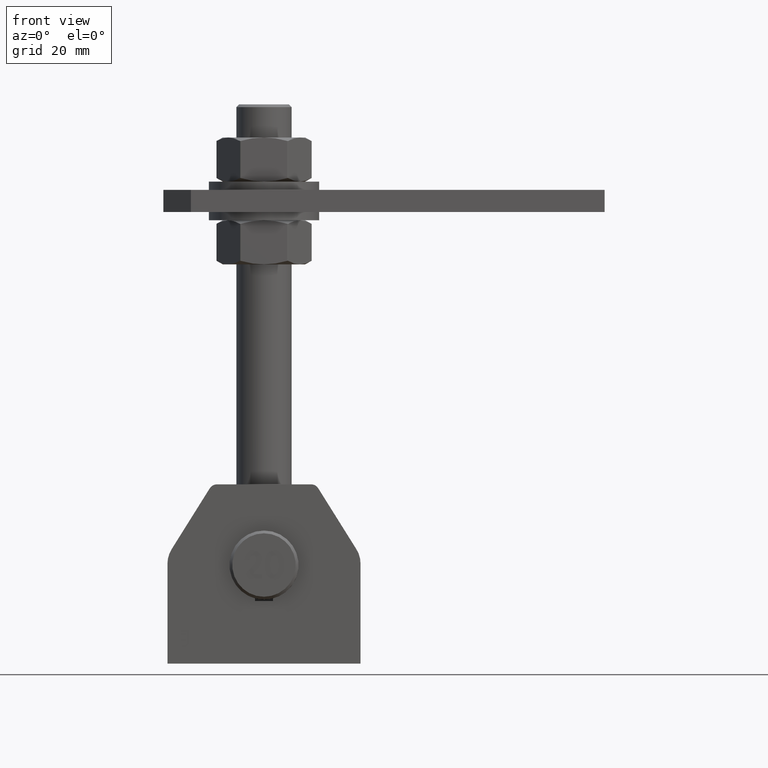
[diagram: clean part render]
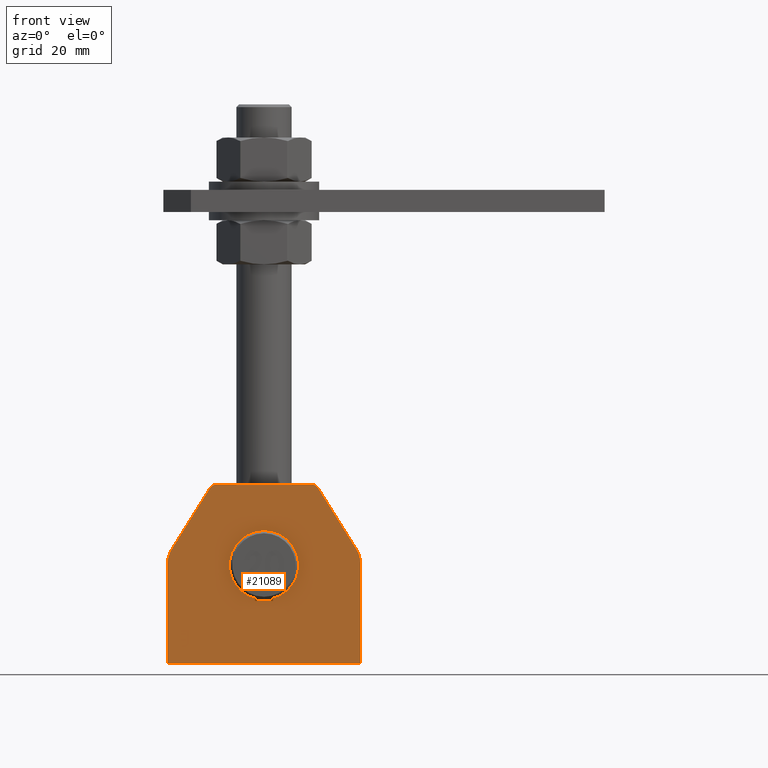
[diagram: same view with one face highlighted and labeled with its STEP entity id]
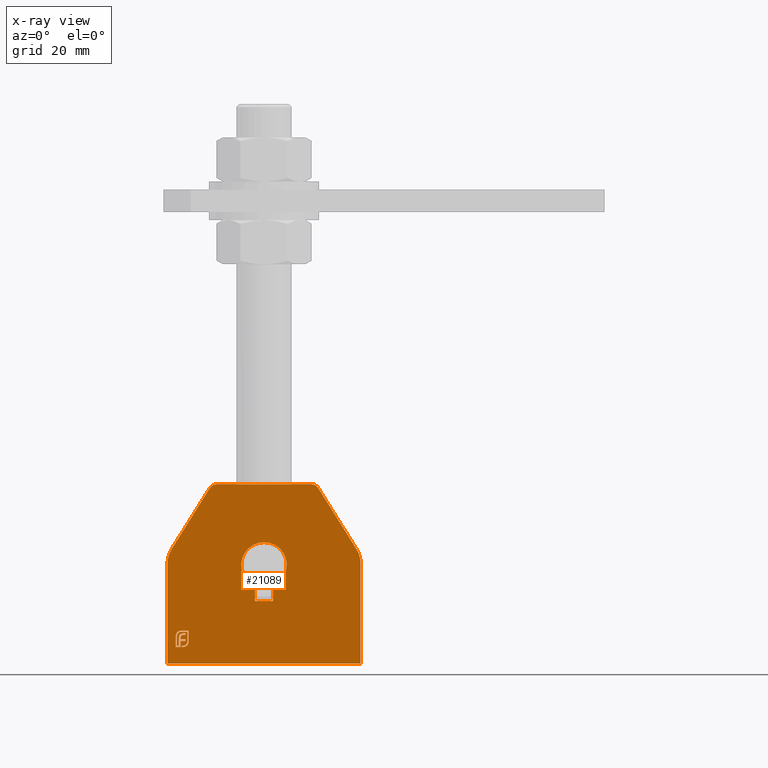
[diagram: x-ray of the same camera — body ghosted, the highlighted face saturated]
A machine part, front view. The second image highlights one B-rep face of the part: STEP entity #21089.
The next image is the same camera in x-ray: the body ghosted, the highlighted face saturated — about 0% of this face is hidden behind the body in this view.
In plain terms, the highlighted planar face has unit normal (0, 1, 0).
Its self-contained STEP definition (entity closure, byte-faithful):
#52 = ORIENTED_EDGE ( 'NONE', *, *, #24335, .T. ) ;
#70 = LINE ( 'NONE', #16175, #7531 ) ;
#88 = LINE ( 'NONE', #8065, #13505 ) ;
#216 = VERTEX_POINT ( 'NONE', #23511 ) ;
#238 = VERTEX_POINT ( 'NONE', #22995 ) ;
#254 = CARTESIAN_POINT ( 'NONE',  ( -30.33311196767898466, -4.000000000000003553, -21.84837309934362892 ) ) ;
#263 = VERTEX_POINT ( 'NONE', #5601 ) ;
#270 = ORIENTED_EDGE ( 'NONE', *, *, #16816, .T. ) ;
#313 = VECTOR ( 'NONE', #3710, 1000.000000000000000 ) ;
#334 = ORIENTED_EDGE ( 'NONE', *, *, #13826, .T. ) ;
#339 = CARTESIAN_POINT ( 'NONE',  ( -27.79400140138258024, -4.000000000000003553, -24.51862698483808245 ) ) ;
#346 = EDGE_CURVE ( 'NONE', #5679, #2559, #24273, .T. ) ;
#362 = B_SPLINE_CURVE_WITH_KNOTS ( 'NONE', 3,
 ( #16059, #8355, #6617, #1030, #2875, #8596, #23619, #18191, #10351, #4644, #6697 ),
 .UNSPECIFIED., .F., .F.,
 ( 4, 1, 1, 1, 1, 1, 1, 1, 4 ),
 ( 0.000000000000000000, 0.1304902425292584489, 0.2570045222119934358, 0.3808172307134164991, 0.5023049142174740300, 0.6242765738051623270, 0.7466372728324792707, 0.8718179433199511053, 1.000000000000000000 ),
 .UNSPECIFIED. ) ;
#394 = CIRCLE ( 'NONE', #16932, 2.999999999999992450 ) ;
#425 = CARTESIAN_POINT ( 'NONE',  ( -27.90502633645406405, -4.000000000000003553, -25.06728899391275078 ) ) ;
#455 = CARTESIAN_POINT ( 'NONE',  ( -29.95902029391182708, -4.000000000000003553, -20.49807557732681218 ) ) ;
#463 = CARTESIAN_POINT ( 'NONE',  ( -29.96636808957313036, -4.000000000000003553, -22.39993002099371111 ) ) ;
#511 = CARTESIAN_POINT ( 'NONE',  ( -28.21837157135702157, -4.000000000000003553, -25.53532190455663553 ) ) ;
#563 = ORIENTED_EDGE ( 'NONE', *, *, #346, .T. ) ;
#633 = VECTOR ( 'NONE', #3526, 1000.000000000000000 ) ;
#634 = DIRECTION ( 'NONE',  ( 0.000000000000000000, 0.000000000000000000, -1.000000000000000000 ) ) ;
#672 = ORIENTED_EDGE ( 'NONE', *, *, #2492, .T. ) ;
#679 = EDGE_CURVE ( 'NONE', #20190, #16444, #1293, .T. ) ;
#711 = CARTESIAN_POINT ( 'NONE',  ( -28.65904292549646470, -4.000000000000003553, -26.37719695710651280 ) ) ;
#787 = ORIENTED_EDGE ( 'NONE', *, *, #15537, .T. ) ;
#816 = VERTEX_POINT ( 'NONE', #13308 ) ;
#827 = CARTESIAN_POINT ( 'NONE',  ( -31.02814965754892640, -4.000000000000003553, -21.39517115920785884 ) ) ;
#838 = CARTESIAN_POINT ( 'NONE',  ( 35.00000000000000000, -4.000000000000003553, -32.50000000000000711 ) ) ;
#858 = CARTESIAN_POINT ( 'NONE',  ( -30.22354093771868833, -4.000000000000003553, -26.50000000000001066 ) ) ;
#868 = CARTESIAN_POINT ( 'NONE',  ( -31.52497368408887368, -4.000000000000003553, -22.37512024014385048 ) ) ;
#924 = CARTESIAN_POINT ( 'NONE',  ( -29.96636808957313036, -4.000000000000003553, -22.39993002099371111 ) ) ;
#987 = CARTESIAN_POINT ( 'NONE',  ( -30.27218139546738129, -4.000000000000003553, -20.99682759641462937 ) ) ;
#1030 = CARTESIAN_POINT ( 'NONE',  ( -29.04975934255973158, -4.000000000000003553, -26.00297381078895143 ) ) ;
#1041 = VERTEX_POINT ( 'NONE', #19697 ) ;
#1068 = VECTOR ( 'NONE', #7013, 1000.000000000000000 ) ;
#1104 = CARTESIAN_POINT ( 'NONE',  ( -29.90296037873983082, -4.000000000000003553, -22.33522812082360431 ) ) ;
#1159 = CARTESIAN_POINT ( 'NONE',  ( -30.88484254723583078, -4.000000000000003553, -26.02851644506649009 ) ) ;
#1181 = DIRECTION ( 'NONE',  ( -1.000000000000000000, 0.000000000000000000, 0.000000000000000000 ) ) ;
#1203 = B_SPLINE_CURVE_WITH_KNOTS ( 'NONE', 3,
 ( #14754, #20696, #5411, #7160, #17040, #16953, #9300 ),
 .UNSPECIFIED., .F., .F.,
 ( 4, 1, 1, 1, 4 ),
 ( 0.000000000000000000, 0.2502307454963358380, 0.4981201228331084141, 0.7465600120008935026, 1.000000000000000000 ),
 .UNSPECIFIED. ) ;
#1210 = LINE ( 'NONE', #23001, #9833 ) ;
#1213 = CARTESIAN_POINT ( 'NONE',  ( -30.19697888547898756, -4.000000000000003553, -22.82052140751466851 ) ) ;
#1249 = VECTOR ( 'NONE', #23331, 1000.000000000000000 ) ;
#1269 = DIRECTION ( 'NONE',  ( 0.000000000000000000, 0.000000000000000000, 1.000000000000000000 ) ) ;
#1293 = LINE ( 'NONE', #4694, #18369 ) ;
#1308 = EDGE_CURVE ( 'NONE', #14521, #216, #88, .T. ) ;
#1326 = CARTESIAN_POINT ( 'NONE',  ( -27.63154022592958015, -4.000000000000003553, -25.54083546553009754 ) ) ;
#1347 = DIRECTION ( 'NONE',  ( 0.000000000000000000, 1.000000000000000000, 0.000000000000000000 ) ) ;
#1515 = VECTOR ( 'NONE', #24128, 1000.000000000000000 ) ;
#1516 = CARTESIAN_POINT ( 'NONE',  ( -31.76582520955162181, -4.000000000000003553, -21.58284559660583213 ) ) ;
#1519 = CARTESIAN_POINT ( 'NONE',  ( -32.00048285514345991, -4.000000000000003553, -22.53219034289714173 ) ) ;
#1553 = DIRECTION ( 'NONE',  ( 0.5308190974567825737, -0.000000000000000000, -0.8474851537196191886 ) ) ;
#1578 = CARTESIAN_POINT ( 'NONE',  ( -28.79317004898530996, -4.000000000000003553, -26.41672498250525791 ) ) ;
#1666 = CARTESIAN_POINT ( 'NONE',  ( -27.32917860523513554, -4.000000000000003553, -24.73149125911965740 ) ) ;
#1765 = DIRECTION ( 'NONE',  ( -1.000000000000000000, -1.362043872071969944E-14, 0.000000000000000000 ) ) ;
#1915 = ORIENTED_EDGE ( 'NONE', *, *, #23016, .F. ) ;
#1944 = VECTOR ( 'NONE', #8546, 1000.000000000000000 ) ;
#1952 = EDGE_LOOP ( 'NONE', ( #4614, #7808, #2860, #16234, #52, #13014, #21096, #2677, #270, #14843, #14294, #6230, #2132, #7278, #10937, #20592, #9028, #787, #18217, #2302, #22335, #9200, #14216, #17008, #15632, #24127, #11589, #16574, #24719, #11011, #12498, #334, #2593, #23206, #563, #23823, #23766, #13838, #11817, #672, #23034, #22068 ) ) ;
#1967 = DIRECTION ( 'NONE',  ( 0.000000000000000000, -0.000000000000000000, 1.000000000000000000 ) ) ;
#1976 = CARTESIAN_POINT ( 'NONE',  ( -31.06608817354793928, -4.000000000000003553, -21.43247025892233282 ) ) ;
#2132 = ORIENTED_EDGE ( 'NONE', *, *, #15711, .T. ) ;
#2141 = CARTESIAN_POINT ( 'NONE',  ( -27.32116165150455345, -4.000000000000003553, -24.46588523442968111 ) ) ;
#2142 = VECTOR ( 'NONE', #15439, 1000.000000000000000 ) ;
#2262 = CARTESIAN_POINT ( 'NONE',  ( -29.53652827490615351, -4.000000000000003553, -21.54789972271763432 ) ) ;
#2273 = CARTESIAN_POINT ( 'NONE',  ( -27.32116165150454989, -4.000000000000003553, -22.48198040587824664 ) ) ;
#2302 = ORIENTED_EDGE ( 'NONE', *, *, #3898, .T. ) ;
#2343 = EDGE_CURVE ( 'NONE', #9743, #13886, #10161, .T. ) ;
#2448 = DIRECTION ( 'NONE',  ( 1.000000000000000000, 0.000000000000000000, -8.585003799727262481E-14 ) ) ;
#2476 = CARTESIAN_POINT ( 'NONE',  ( -30.77707487753674442, -4.000000000000003553, -22.49055283414976358 ) ) ;
#2492 = EDGE_CURVE ( 'NONE', #12921, #4286, #14009, .T. ) ;
#2541 = CARTESIAN_POINT ( 'NONE',  ( -28.41230930720784187, -4.000000000000003553, -21.82925122463261758 ) ) ;
#2559 = VERTEX_POINT ( 'NONE', #13411 ) ;
#2593 = ORIENTED_EDGE ( 'NONE', *, *, #2343, .T. ) ;
#2604 = EDGE_CURVE ( 'NONE', #9007, #19381, #13456, .T. ) ;
#2639 = EDGE_CURVE ( 'NONE', #6429, #19370, #15880, .T. ) ;
#2677 = ORIENTED_EDGE ( 'NONE', *, *, #9275, .T. ) ;
#2754 = CARTESIAN_POINT ( 'NONE',  ( -31.06608817354793928, -4.000000000000003553, -21.43247025892233282 ) ) ;
#2800 = CARTESIAN_POINT ( 'NONE',  ( -28.53021479450984543, -4.000000000000003553, -26.32556795011259609 ) ) ;
#2831 = CARTESIAN_POINT ( 'NONE',  ( -29.21729245179463064, -4.000000000000003553, -26.49758726462893321 ) ) ;
#2843 = CARTESIAN_POINT ( 'NONE',  ( -30.23088873337998805, -4.000000000000003553, -23.15185444366690959 ) ) ;
#2860 = ORIENTED_EDGE ( 'NONE', *, *, #19896, .T. ) ;
#2875 = CARTESIAN_POINT ( 'NONE',  ( -28.90100484629222777, -4.000000000000003553, -25.96791200578304881 ) ) ;
#2904 = CARTESIAN_POINT ( 'NONE',  ( -28.41230930720783832, -4.000000000000003553, -22.13540937718685342 ) ) ;
#2940 = CARTESIAN_POINT ( 'NONE',  ( -29.94531344339144496, -4.000000000000003553, -22.37844563687920996 ) ) ;
#3000 = VECTOR ( 'NONE', #6336, 1000.000000000000000 ) ;
#3020 = VECTOR ( 'NONE', #12700, 1000.000000000000000 ) ;
#3083 = DIRECTION ( 'NONE',  ( 1.000000000000000000, -0.000000000000000000, -2.028916346171704184E-16 ) ) ;
#3103 = VECTOR ( 'NONE', #14157, 1000.000000000000000 ) ;
#3112 = CARTESIAN_POINT ( 'NONE',  ( -30.64250331086143575, -4.000000000000003553, -22.19519819336032640 ) ) ;
#3171 = CARTESIAN_POINT ( 'NONE',  ( -28.28862141357593529, -4.000000000000003553, -26.19384184744577837 ) ) ;
#3301 = LINE ( 'NONE', #4441, #3000 ) ;
#3331 = CARTESIAN_POINT ( 'NONE',  ( -27.32116165150455345, -4.000000000000003553, -24.46588523442968111 ) ) ;
#3347 = CARTESIAN_POINT ( 'NONE',  ( -31.99803755718267340, -4.000000000000003553, -22.38889247847477648 ) ) ;
#3391 = LINE ( 'NONE', #10139, #18072 ) ;
#3402 = VERTEX_POINT ( 'NONE', #20469 ) ;
#3427 = CARTESIAN_POINT ( 'NONE',  ( -31.95638291017542798, -4.000000000000003553, -22.10665540004092833 ) ) ;
#3526 = DIRECTION ( 'NONE',  ( -1.000000000000000000, 2.623195605471793913E-14, 0.000000000000000000 ) ) ;
#3572 = CARTESIAN_POINT ( 'NONE',  ( -30.04950932011809073, -4.000000000000003553, -20.50076917938463694 ) ) ;
#3604 = B_SPLINE_CURVE_WITH_KNOTS ( 'NONE', 3,
 ( #16270, #1326, #12973, #10879, #24325, #11138, #8970 ),
 .UNSPECIFIED., .F., .F.,
 ( 4, 1, 1, 1, 4 ),
 ( 0.000000000000000000, 0.2562042022885830383, 0.5044120477612358266, 0.7520698955827869181, 1.000000000000000000 ),
 .UNSPECIFIED. ) ;
#3650 = CARTESIAN_POINT ( 'NONE',  ( -30.96689293212036631, -4.000000000000003553, -20.76259622113366987 ) ) ;
#3652 = B_SPLINE_CURVE_WITH_KNOTS ( 'NONE', 3,
 ( #3331, #15099, #1666, #3665, #17050, #22428, #13227 ),
 .UNSPECIFIED., .F., .F.,
 ( 4, 1, 1, 1, 4 ),
 ( 0.000000000000000000, 0.2555069489946588668, 0.5046917175512072307, 0.7514670339421773981, 1.000000000000000000 ),
 .UNSPECIFIED. ) ;
#3665 = CARTESIAN_POINT ( 'NONE',  ( -27.38262934179791230, -4.000000000000003553, -24.98913746031431771 ) ) ;
#3710 = DIRECTION ( 'NONE',  ( 1.180438022462245209E-13, 0.000000000000000000, 1.000000000000000000 ) ) ;
#3712 = EDGE_CURVE ( 'NONE', #13886, #5679, #6569, .T. ) ;
#3789 = CARTESIAN_POINT ( 'NONE',  ( -29.80104268719384208, -4.000000000000003553, -26.26425822253324682 ) ) ;
#3859 = VERTEX_POINT ( 'NONE', #7763 ) ;
#3897 = CARTESIAN_POINT ( 'NONE',  ( -30.88998138726364928, -4.000000000000003553, -20.72140829527721806 ) ) ;
#3898 = EDGE_CURVE ( 'NONE', #23833, #16806, #18891, .T. ) ;
#4020 = CARTESIAN_POINT ( 'NONE',  ( -28.05205942615416959, -4.000000000000003553, -25.33364240614918828 ) ) ;
#4022 = CARTESIAN_POINT ( 'NONE',  ( -30.82778605627893853, -4.000000000000003553, -22.66166296200908903 ) ) ;
#4102 = CARTESIAN_POINT ( 'NONE',  ( -29.27040833722903201, -4.000000000000003553, -22.13596680133672123 ) ) ;
#4153 = B_SPLINE_CURVE_WITH_KNOTS ( 'NONE', 3,
 ( #22443, #511, #17672, #4020, #23341, #425, #23179, #11744, #17746, #339, #15613 ),
 .UNSPECIFIED., .F., .F.,
 ( 4, 1, 1, 1, 1, 1, 1, 1, 4 ),
 ( 0.000000000000000000, 0.1306323763146406969, 0.2560617239099410303, 0.3794489883599202473, 0.5019391702453822601, 0.6240267406620506607, 0.7465329994844344119, 0.8718523902103633150, 1.000000000000000000 ),
 .UNSPECIFIED. ) ;
#4187 = CARTESIAN_POINT ( 'NONE',  ( -3.299999999999997158, -4.000000000000003553, -4.311249896677133542 ) ) ;
#4188 = VERTEX_POINT ( 'NONE', #13621 ) ;
#4232 = CARTESIAN_POINT ( 'NONE',  ( 25.00000000000000711, -4.000000000000003553, 3.699999999999994404 ) ) ;
#4269 = CARTESIAN_POINT ( 'NONE',  ( -29.33500488567748832, -4.000000000000003553, -21.52547549173166885 ) ) ;
#4286 = VERTEX_POINT ( 'NONE', #21591 ) ;
#4332 = CARTESIAN_POINT ( 'NONE',  ( -29.96636808957313036, -4.000000000000003553, -22.39993002099371111 ) ) ;
#4381 = ORIENTED_EDGE ( 'NONE', *, *, #14465, .F. ) ;
#4435 = DIRECTION ( 'NONE',  ( -3.359349312936278906E-14, -8.398373282340697265E-15, 1.000000000000000000 ) ) ;
#4441 = CARTESIAN_POINT ( 'NONE',  ( -30.88484254723583433, -4.000000000000003553, -24.63978306508048632 ) ) ;
#4564 = LINE ( 'NONE', #14348, #13771 ) ;
#4603 = CARTESIAN_POINT ( 'NONE',  ( -30.01258482682716533, -4.000000000000003553, -20.97086593877527960 ) ) ;
#4614 = ORIENTED_EDGE ( 'NONE', *, *, #23716, .T. ) ;
#4640 = CARTESIAN_POINT ( 'NONE',  ( -34.99999999999999289, -4.000000000000003553, 3.700000000000002398 ) ) ;
#4644 = CARTESIAN_POINT ( 'NONE',  ( -28.29355604167800919, -4.000000000000003553, -25.61060997225184366 ) ) ;
#4669 = CARTESIAN_POINT ( 'NONE',  ( -29.80104268719384208, -4.000000000000003553, -26.02851644506649009 ) ) ;
#4677 = CARTESIAN_POINT ( 'NONE',  ( -29.31481256175206696, -4.000000000000003553, -26.49919272320350672 ) ) ;
#4694 = CARTESIAN_POINT ( 'NONE',  ( -29.58244576627011568, -4.000000000000003553, -26.02851644506648654 ) ) ;
#4857 = ORIENTED_EDGE ( 'NONE', *, *, #9135, .F. ) ;
#4917 = VERTEX_POINT ( 'NONE', #10034 ) ;
#4942 = VECTOR ( 'NONE', #634, 1000.000000000000000 ) ;
#4947 = EDGE_CURVE ( 'NONE', #5657, #816, #17117, .T. ) ;
#4952 = CARTESIAN_POINT ( 'NONE',  ( -29.69076880034513266, -4.000000000000003553, -22.21304660940942455 ) ) ;
#4967 = CARTESIAN_POINT ( 'NONE',  ( -29.36384884534640349, -4.000000000000003553, -26.02851644506649365 ) ) ;
#4986 = B_SPLINE_CURVE_WITH_KNOTS ( 'NONE', 3,
 ( #8988, #18672, #22437, #12577, #1516, #14870, #13320 ),
 .UNSPECIFIED., .F., .F.,
 ( 4, 1, 1, 1, 4 ),
 ( 0.000000000000000000, 0.2525737193840859596, 0.5047887723702231266, 0.7511246564246851776, 1.000000000000000000 ),
 .UNSPECIFIED. ) ;
#5054 = CARTESIAN_POINT ( 'NONE',  ( -30.55455266581271445, -4.000000000000003553, -22.06449354241908978 ) ) ;
#5180 = CARTESIAN_POINT ( 'NONE',  ( -29.32159902029390963, -4.000000000000003553, -23.71396081175647197 ) ) ;
#5297 = EDGE_CURVE ( 'NONE', #238, #8026, #4153, .T. ) ;
#5411 = CARTESIAN_POINT ( 'NONE',  ( -31.55161929604444992, -4.000000000000003553, -21.25417115457571882 ) ) ;
#5460 = VERTEX_POINT ( 'NONE', #16002 ) ;
#5487 = CARTESIAN_POINT ( 'NONE',  ( -30.48767484073862732, -4.000000000000003553, -20.55912713681317783 ) ) ;
#5542 = EDGE_CURVE ( 'NONE', #22665, #24176, #23888, .T. ) ;
#5576 = LINE ( 'NONE', #24188, #8234 ) ;
#5598 = CARTESIAN_POINT ( 'NONE',  ( -30.22354093771868833, -4.000000000000003553, -26.26425822253324682 ) ) ;
#5601 = CARTESIAN_POINT ( 'NONE',  ( -31.52899930020994290, -4.000000000000003553, -26.02851644506649009 ) ) ;
#5620 = EDGE_CURVE ( 'NONE', #20522, #1041, #3652, .T. ) ;
#5656 = CARTESIAN_POINT ( 'NONE',  ( -28.41230930720783832, -4.000000000000003553, -21.52309307207838529 ) ) ;
#5657 = VERTEX_POINT ( 'NONE', #4332 ) ;
#5679 = VERTEX_POINT ( 'NONE', #17959 ) ;
#6038 = CARTESIAN_POINT ( 'NONE',  ( -31.17649768432443835, -4.000000000000003553, -21.54509237817817890 ) ) ;
#6138 = CARTESIAN_POINT ( 'NONE',  ( -31.52899930020994290, -4.000000000000003553, -24.28035339398180881 ) ) ;
#6230 = ORIENTED_EDGE ( 'NONE', *, *, #5297, .T. ) ;
#6308 = ORIENTED_EDGE ( 'NONE', *, *, #23968, .T. ) ;
#6336 = DIRECTION ( 'NONE',  ( 0.000000000000000000, -1.057108676831973195E-14, 1.000000000000000000 ) ) ;
#6374 = CARTESIAN_POINT ( 'NONE',  ( -31.10332752570956671, -4.000000000000003553, -21.47045588833652019 ) ) ;
#6376 = CARTESIAN_POINT ( 'NONE',  ( -32.00048285514346702, -4.000000000000003553, -24.51609517144857264 ) ) ;
#6429 = VERTEX_POINT ( 'NONE', #12506 ) ;
#6492 = CARTESIAN_POINT ( 'NONE',  ( -30.11773367922905820, -4.000000000000003553, -20.97343124081151799 ) ) ;
#6551 = EDGE_CURVE ( 'NONE', #24176, #14521, #5576, .T. ) ;
#6569 = LINE ( 'NONE', #23880, #1515 ) ;
#6573 = CARTESIAN_POINT ( 'NONE',  ( -3.300000000000001155, -4.000000000000003553, -9.830000000000005400 ) ) ;
#6617 = CARTESIAN_POINT ( 'NONE',  ( -29.20485024492728243, -4.000000000000003553, -26.02415165109006168 ) ) ;
#6697 = CARTESIAN_POINT ( 'NONE',  ( -28.25555633310007408, -4.000000000000003553, -25.57417774667600696 ) ) ;
#6765 = ORIENTED_EDGE ( 'NONE', *, *, #23314, .F. ) ;
#6795 = CARTESIAN_POINT ( 'NONE',  ( -30.16475857242827630, -4.000000000000003553, -22.72200839748076717 ) ) ;
#6831 = CARTESIAN_POINT ( 'NONE',  ( -30.42057555226342203, -4.000000000000003553, -21.03144089940049355 ) ) ;
#6907 = LINE ( 'NONE', #16998, #633 ) ;
#6946 = DIRECTION ( 'NONE',  ( -0.000000000000000000, -0.000000000000000000, -1.000000000000000000 ) ) ;
#6986 = CARTESIAN_POINT ( 'NONE',  ( -30.44642407277816787, -4.000000000000003553, -21.95293911826453126 ) ) ;
#7013 = DIRECTION ( 'NONE',  ( 1.000000000000000000, -1.609688212448723507E-14, -1.287750569958978805E-13 ) ) ;
#7022 = DIRECTION ( 'NONE',  ( -9.238210610574378083E-14, -2.309552652643594521E-14, -1.000000000000000000 ) ) ;
#7103 = CARTESIAN_POINT ( 'NONE',  ( -31.98097907931055772, -4.000000000000003553, -22.24699268687798082 ) ) ;
#7160 = CARTESIAN_POINT ( 'NONE',  ( -31.37938991841538439, -4.000000000000003553, -21.06610650456821787 ) ) ;
#7209 = B_SPLINE_CURVE_WITH_KNOTS ( 'NONE', 3,
 ( #8663, #4952, #22124, #14284, #1104, #2940, #924 ),
 .UNSPECIFIED., .F., .F.,
 ( 4, 1, 1, 1, 4 ),
 ( 0.000000000000000000, 0.2570737214321328623, 0.5065269558163381092, 0.7546836237012656268, 1.000000000000000000 ),
 .UNSPECIFIED. ) ;
#7215 = CARTESIAN_POINT ( 'NONE',  ( 33.47485153719619433, -4.000000000000003553, 9.008190974567817477 ) ) ;
#7278 = ORIENTED_EDGE ( 'NONE', *, *, #8833, .T. ) ;
#7300 = VERTEX_POINT ( 'NONE', #11568 ) ;
#7369 = EDGE_CURVE ( 'NONE', #24357, #10574, #18726, .T. ) ;
#7531 = VECTOR ( 'NONE', #20362, 1000.000000000000000 ) ;
#7635 = CARTESIAN_POINT ( 'NONE',  ( -25.00000000000000000, -4.000000000000003553, 3.700000000000000622 ) ) ;
#7763 = CARTESIAN_POINT ( 'NONE',  ( -29.12382085374387941, -4.000000000000003553, -21.52309307207838529 ) ) ;
#7790 = FACE_OUTER_BOUND ( 'NONE', #14816, .T. ) ;
#7793 = EDGE_CURVE ( 'NONE', #4917, #9036, #13217, .T. ) ;
#7808 = ORIENTED_EDGE ( 'NONE', *, *, #9257, .T. ) ;
#7818 = CARTESIAN_POINT ( 'NONE',  ( -35.00000000000000000, -4.000000000000003553, 3.700000000000001954 ) ) ;
#7903 = CARTESIAN_POINT ( 'NONE',  ( -29.95348709869485759, -4.000000000000003553, -21.64949700229051999 ) ) ;
#7945 = CARTESIAN_POINT ( 'NONE',  ( -31.35001827805263019, -4.000000000000003553, -21.79796043740874367 ) ) ;
#8026 = VERTEX_POINT ( 'NONE', #13218 ) ;
#8030 = CARTESIAN_POINT ( 'NONE',  ( -29.90023792862141505, -4.000000000000003553, -21.63086074177747520 ) ) ;
#8061 = LINE ( 'NONE', #3789, #313 ) ;
#8065 = CARTESIAN_POINT ( 'NONE',  ( 3.299999999999998490, -4.000000000000003553, -9.830000000000005400 ) ) ;
#8086 = CARTESIAN_POINT ( 'NONE',  ( -30.88035005788108833, -4.000000000000003553, -23.04366704587021530 ) ) ;
#8134 = DIRECTION ( 'NONE',  ( 3.143326737937128373E-16, 0.000000000000000000, 1.000000000000000000 ) ) ;
#8156 = EDGE_CURVE ( 'NONE', #2559, #9007, #17484, .T. ) ;
#8191 = DIRECTION ( 'NONE',  ( 0.000000000000000000, 0.000000000000000000, 1.000000000000000000 ) ) ;
#8200 = CARTESIAN_POINT ( 'NONE',  ( -19.64245546115884267, -4.000000000000003553, 31.09245729237035150 ) ) ;
#8234 = VECTOR ( 'NONE', #12664, 1000.000000000000000 ) ;
#8297 = AXIS2_PLACEMENT_3D ( 'NONE', #12408, #20222, #10409 ) ;
#8355 = CARTESIAN_POINT ( 'NONE',  ( -29.31030550020118852, -4.000000000000003553, -26.02704658514475611 ) ) ;
#8356 = DIRECTION ( 'NONE',  ( 0.000000000000000000, 0.000000000000000000, 1.000000000000000000 ) ) ;
#8393 = CARTESIAN_POINT ( 'NONE',  ( -30.95337328472558625, -4.000000000000003553, -21.32165506842833125 ) ) ;
#8516 = CIRCLE ( 'NONE', #8297, 2.999999999999992450 ) ;
#8546 = DIRECTION ( 'NONE',  ( -9.769142254861392966E-14, 0.000000000000000000, -1.000000000000000000 ) ) ;
#8554 = CARTESIAN_POINT ( 'NONE',  ( -31.52899930020994290, -4.000000000000003553, -22.53219034289714173 ) ) ;
#8596 = CARTESIAN_POINT ( 'NONE',  ( -28.75913995950700297, -4.000000000000003553, -25.91648675173940575 ) ) ;
#8663 = CARTESIAN_POINT ( 'NONE',  ( -29.66143456962911529, -4.000000000000003553, -22.20153953813856873 ) ) ;
#8728 = VECTOR ( 'NONE', #16112, 1000.000000000000000 ) ;
#8833 = EDGE_CURVE ( 'NONE', #10952, #4917, #23362, .T. ) ;
#8970 = CARTESIAN_POINT ( 'NONE',  ( -28.28862141357593529, -4.000000000000003553, -26.19384184744577837 ) ) ;
#8988 = CARTESIAN_POINT ( 'NONE',  ( -31.91720783764871072, -4.000000000000003553, -21.97008397480756869 ) ) ;
#9007 = VERTEX_POINT ( 'NONE', #21020 ) ;
#9028 = ORIENTED_EDGE ( 'NONE', *, *, #14462, .T. ) ;
#9036 = VERTEX_POINT ( 'NONE', #1976 ) ;
#9130 = LINE ( 'NONE', #19679, #13016 ) ;
#9135 = EDGE_CURVE ( 'NONE', #18152, #11667, #394, .T. ) ;
#9200 = ORIENTED_EDGE ( 'NONE', *, *, #18472, .T. ) ;
#9257 = EDGE_CURVE ( 'NONE', #16242, #7300, #20128, .T. ) ;
#9271 = VECTOR ( 'NONE', #8356, 1000.000000000000000 ) ;
#9273 = B_SPLINE_CURVE_WITH_KNOTS ( 'NONE', 3,
 ( #14394, #10512, #20089, #2800, #711, #10359, #12267 ),
 .UNSPECIFIED., .F., .F.,
 ( 4, 1, 1, 1, 4 ),
 ( 0.000000000000000000, 0.2488753435753123244, 0.4952112276297804816, 0.7474262806159135408, 1.000000000000000000 ),
 .UNSPECIFIED. ) ;
#9275 = EDGE_CURVE ( 'NONE', #10574, #14158, #17765, .T. ) ;
#9300 = CARTESIAN_POINT ( 'NONE',  ( -30.96689293212036631, -4.000000000000003553, -20.76259622113366987 ) ) ;
#9525 = CARTESIAN_POINT ( 'NONE',  ( 19.64245546115885688, -4.000000000000003553, 31.09245729237034794 ) ) ;
#9542 = DIRECTION ( 'NONE',  ( 0.000000000000000000, 1.000000000000000000, -0.000000000000000000 ) ) ;
#9568 = CARTESIAN_POINT ( 'NONE',  ( -29.62895759376887383, -4.000000000000003553, -22.19105968939377860 ) ) ;
#9673 = EDGE_CURVE ( 'NONE', #4188, #5657, #7209, .T. ) ;
#9677 = CARTESIAN_POINT ( 'NONE',  ( 25.00000000000000711, -4.000000000000003553, 3.699999999999994404 ) ) ;
#9699 = ORIENTED_EDGE ( 'NONE', *, *, #20342, .F. ) ;
#9743 = VERTEX_POINT ( 'NONE', #16538 ) ;
#9762 = PLANE ( 'NONE',  #22171 ) ;
#9810 = CARTESIAN_POINT ( 'NONE',  ( -29.12382085374387941, -4.000000000000003553, -21.52309307207838529 ) ) ;
#9833 = VECTOR ( 'NONE', #19313, 1000.000000000000000 ) ;
#9947 = CARTESIAN_POINT ( 'NONE',  ( -29.36384884534639994, -4.000000000000003553, -26.50000000000001066 ) ) ;
#10027 = CARTESIAN_POINT ( 'NONE',  ( -31.06608817354793928, -4.000000000000003553, -21.43247025892233282 ) ) ;
#10034 = CARTESIAN_POINT ( 'NONE',  ( -29.95902029391182708, -4.000000000000003553, -20.96955913226033275 ) ) ;
#10139 = CARTESIAN_POINT ( 'NONE',  ( -27.79264520643807401, -4.000000000000003553, -22.71772218334500693 ) ) ;
#10161 = LINE ( 'NONE', #11078, #12552 ) ;
#10204 = VERTEX_POINT ( 'NONE', #8554 ) ;
#10224 = EDGE_CURVE ( 'NONE', #3859, #24566, #70, .T. ) ;
#10310 = CARTESIAN_POINT ( 'NONE',  ( -30.82807927087997157, -4.000000000000003553, -21.22947252694351761 ) ) ;
#10351 = CARTESIAN_POINT ( 'NONE',  ( -28.36866569466874566, -4.000000000000003553, -25.68262136189366629 ) ) ;
#10359 = CARTESIAN_POINT ( 'NONE',  ( -28.74843983482934462, -4.000000000000003553, -26.40354273423766429 ) ) ;
#10409 = DIRECTION ( 'NONE',  ( 0.000000000000000000, 0.000000000000000000, -1.000000000000000000 ) ) ;
#10512 = CARTESIAN_POINT ( 'NONE',  ( -28.32785828694158425, -4.000000000000003553, -26.21775669005240061 ) ) ;
#10574 = VERTEX_POINT ( 'NONE', #9947 ) ;
#10592 = CARTESIAN_POINT ( 'NONE',  ( -30.22969931561184964, -4.000000000000003553, -23.03671602536044105 ) ) ;
#10674 = CARTESIAN_POINT ( 'NONE',  ( -30.72046422298022250, -4.000000000000003553, -22.33637032365053088 ) ) ;
#10879 = CARTESIAN_POINT ( 'NONE',  ( -27.88942686325106379, -4.000000000000003553, -25.88233021545318735 ) ) ;
#10937 = ORIENTED_EDGE ( 'NONE', *, *, #7793, .T. ) ;
#10952 = VERTEX_POINT ( 'NONE', #14334 ) ;
#10997 = CARTESIAN_POINT ( 'NONE',  ( -31.93026732860425199, -4.000000000000003553, -22.01561173461973553 ) ) ;
#11011 = ORIENTED_EDGE ( 'NONE', *, *, #11515, .T. ) ;
#11069 = ORIENTED_EDGE ( 'NONE', *, *, #21688, .F. ) ;
#11072 = CARTESIAN_POINT ( 'NONE',  ( -17.09999999999999432, -4.000000000000003553, 32.50000000000000000 ) ) ;
#11078 = CARTESIAN_POINT ( 'NONE',  ( -28.41230930720783121, -4.000000000000003553, -24.01583275017495822 ) ) ;
#11082 = VECTOR ( 'NONE', #13955, 1000.000000000000000 ) ;
#11138 = CARTESIAN_POINT ( 'NONE',  ( -28.21779904552801455, -4.000000000000003553, -26.14755350462341355 ) ) ;
#11171 = VECTOR ( 'NONE', #15652, 1000.000000000000114 ) ;
#11235 = ORIENTED_EDGE ( 'NONE', *, *, #1308, .F. ) ;
#11438 = EDGE_CURVE ( 'NONE', #16806, #13513, #22083, .T. ) ;
#11477 = EDGE_CURVE ( 'NONE', #14084, #16054, #9130, .T. ) ;
#11515 = EDGE_CURVE ( 'NONE', #816, #21713, #18634, .T. ) ;
#11568 = CARTESIAN_POINT ( 'NONE',  ( -27.32116165150455345, -4.000000000000003553, -20.49807557732681218 ) ) ;
#11589 = ORIENTED_EDGE ( 'NONE', *, *, #24131, .T. ) ;
#11667 = VERTEX_POINT ( 'NONE', #9525 ) ;
#11668 = CARTESIAN_POINT ( 'NONE',  ( -30.88331170816326221, -4.000000000000003553, -23.18038297405130166 ) ) ;
#11737 = CARTESIAN_POINT ( 'NONE',  ( -29.56239318607579847, -4.000000000000003553, -22.16958032113571875 ) ) ;
#11739 = CARTESIAN_POINT ( 'NONE',  ( -30.05765246463964502, -4.000000000000003553, -21.68595302392440516 ) ) ;
#11743 = VECTOR ( 'NONE', #19611, 1000.000000000000000 ) ;
#11744 = CARTESIAN_POINT ( 'NONE',  ( -27.81969228123167071, -4.000000000000003553, -24.77624880548291486 ) ) ;
#11817 = ORIENTED_EDGE ( 'NONE', *, *, #16296, .T. ) ;
#11903 = VERTEX_POINT ( 'NONE', #838 ) ;
#11947 = CARTESIAN_POINT ( 'NONE',  ( -30.15343716464631996, -4.000000000000003553, -22.69095845484411811 ) ) ;
#12102 = VECTOR ( 'NONE', #1553, 1000.000000000000000 ) ;
#12212 = CARTESIAN_POINT ( 'NONE',  ( -28.79317004898530996, -4.000000000000003553, -26.41672498250525791 ) ) ;
#12257 = CARTESIAN_POINT ( 'NONE',  ( -31.50196106619241476, -4.000000000000003553, -22.22225408152362292 ) ) ;
#12267 = CARTESIAN_POINT ( 'NONE',  ( -28.79317004898530996, -4.000000000000003553, -26.41672498250525791 ) ) ;
#12362 = CARTESIAN_POINT ( 'NONE',  ( -30.23088873337998805, -4.000000000000003553, -25.17311056682995840 ) ) ;
#12378 = AXIS2_PLACEMENT_3D ( 'NONE', #7635, #9542, #17202 ) ;
#12408 = CARTESIAN_POINT ( 'NONE',  ( -17.09999999999999432, -4.000000000000003553, 29.50000000000000711 ) ) ;
#12430 = LINE ( 'NONE', #2273, #24093 ) ;
#12436 = CARTESIAN_POINT ( 'NONE',  ( -31.41474733085039617, -4.000000000000003553, -21.93382409993211724 ) ) ;
#12498 = ORIENTED_EDGE ( 'NONE', *, *, #14131, .T. ) ;
#12506 = CARTESIAN_POINT ( 'NONE',  ( -35.00000000000000000, -4.000000000000003553, -32.50000000000000000 ) ) ;
#12542 = ORIENTED_EDGE ( 'NONE', *, *, #12938, .F. ) ;
#12552 = VECTOR ( 'NONE', #7022, 1000.000000000000000 ) ;
#12577 = CARTESIAN_POINT ( 'NONE',  ( -31.82605080525604535, -4.000000000000003553, -21.70712872033210417 ) ) ;
#12606 = VECTOR ( 'NONE', #1181, 1000.000000000000000 ) ;
#12663 = CARTESIAN_POINT ( 'NONE',  ( -31.99966696089347096, -4.000000000000003553, -22.48437780410131737 ) ) ;
#12664 = DIRECTION ( 'NONE',  ( 1.000000000000000000, 0.000000000000000000, 0.000000000000000000 ) ) ;
#12683 = CARTESIAN_POINT ( 'NONE',  ( 17.10000000000000853, -4.000000000000003553, 29.50000000000000355 ) ) ;
#12700 = DIRECTION ( 'NONE',  ( 0.000000000000000000, 0.000000000000000000, -1.000000000000000000 ) ) ;
#12770 = DIRECTION ( 'NONE',  ( 0.000000000000000000, 1.000000000000000000, 0.000000000000000000 ) ) ;
#12921 = VERTEX_POINT ( 'NONE', #13691 ) ;
#12938 = EDGE_CURVE ( 'NONE', #3402, #14732, #8516, .T. ) ;
#12973 = CARTESIAN_POINT ( 'NONE',  ( -27.72182482111803381, -4.000000000000003553, -25.68736336128744568 ) ) ;
#13014 = ORIENTED_EDGE ( 'NONE', *, *, #14492, .T. ) ;
#13016 = VECTOR ( 'NONE', #23291, 1000.000000000000000 ) ;
#13094 = EDGE_CURVE ( 'NONE', #4286, #19466, #4986, .T. ) ;
#13217 = B_SPLINE_CURVE_WITH_KNOTS ( 'NONE', 3,
 ( #14090, #4603, #6492, #987, #6831, #23741, #14426, #10310, #8393, #827, #2754 ),
 .UNSPECIFIED., .F., .F.,
 ( 4, 1, 1, 1, 1, 1, 1, 1, 4 ),
 ( 0.000000000000000000, 0.1301676365660976165, 0.2555231392837346571, 0.3790297504302640452, 0.5002170846485104461, 0.6227425632618527329, 0.7453202992625194145, 0.8707857905346586547, 1.000000000000000000 ),
 .UNSPECIFIED. ) ;
#13218 = CARTESIAN_POINT ( 'NONE',  ( -27.79264520643807401, -4.000000000000003553, -24.46588523442968111 ) ) ;
#13227 = CARTESIAN_POINT ( 'NONE',  ( -27.58568229531140759, -4.000000000000003553, -25.46641007697691705 ) ) ;
#13308 = CARTESIAN_POINT ( 'NONE',  ( -30.16475857242827630, -4.000000000000003553, -22.72200839748076717 ) ) ;
#13320 = CARTESIAN_POINT ( 'NONE',  ( -31.69432470258922407, -4.000000000000003553, -21.46553533939819047 ) ) ;
#13411 = CARTESIAN_POINT ( 'NONE',  ( -30.23088873337998805, -4.000000000000003553, -26.02851644506649009 ) ) ;
#13456 = LINE ( 'NONE', #5598, #1249 ) ;
#13505 = VECTOR ( 'NONE', #8134, 1000.000000000000000 ) ;
#13507 = CARTESIAN_POINT ( 'NONE',  ( -30.40893801983530409, -4.000000000000003553, -21.91834645653732494 ) ) ;
#13513 = VERTEX_POINT ( 'NONE', #6986 ) ;
#13587 = CARTESIAN_POINT ( 'NONE',  ( -29.23158852344296932, -4.000000000000003553, -22.13540937718685342 ) ) ;
#13621 = CARTESIAN_POINT ( 'NONE',  ( -29.66143456962911529, -4.000000000000003553, -22.20153953813856873 ) ) ;
#13691 = CARTESIAN_POINT ( 'NONE',  ( -32.00048285514345991, -4.000000000000003553, -22.53219034289714173 ) ) ;
#13771 = VECTOR ( 'NONE', #3083, 1000.000000000000000 ) ;
#13790 = VERTEX_POINT ( 'NONE', #3171 ) ;
#13806 = CARTESIAN_POINT ( 'NONE',  ( -29.98794462028675767, -4.000000000000003553, -22.42259635913253746 ) ) ;
#13826 = EDGE_CURVE ( 'NONE', #17547, #9743, #22829, .T. ) ;
#13838 = ORIENTED_EDGE ( 'NONE', *, *, #16492, .T. ) ;
#13886 = VERTEX_POINT ( 'NONE', #20631 ) ;
#13937 = CARTESIAN_POINT ( 'NONE',  ( -29.58244576627012279, -4.000000000000003553, -26.50000000000001066 ) ) ;
#13955 = DIRECTION ( 'NONE',  ( -8.946477643924251337E-14, 0.000000000000000000, -1.000000000000000000 ) ) ;
#13995 = CARTESIAN_POINT ( 'NONE',  ( -30.23088873337999161, -4.000000000000003553, -23.43290762771169966 ) ) ;
#14002 = CARTESIAN_POINT ( 'NONE',  ( -28.83910800367198490, -4.000000000000003553, -26.42978154989058837 ) ) ;
#14009 = B_SPLINE_CURVE_WITH_KNOTS ( 'NONE', 3,
 ( #1519, #12663, #3347, #7103, #3427, #10997, #16713 ),
 .UNSPECIFIED., .F., .F.,
 ( 4, 1, 1, 1, 4 ),
 ( 0.000000000000000000, 0.2514026055896927958, 0.5020703828466570595, 0.7510027753359546088, 1.000000000000000000 ),
 .UNSPECIFIED. ) ;
#14058 = CARTESIAN_POINT ( 'NONE',  ( 3.299999999999998490, -4.000000000000003553, -9.830000000000005400 ) ) ;
#14084 = VERTEX_POINT ( 'NONE', #2904 ) ;
#14090 = CARTESIAN_POINT ( 'NONE',  ( -29.95902029391182708, -4.000000000000003553, -20.96955913226033275 ) ) ;
#14131 = EDGE_CURVE ( 'NONE', #21713, #17547, #16569, .T. ) ;
#14157 = DIRECTION ( 'NONE',  ( -6.854156259458041845E-14, 0.000000000000000000, -1.000000000000000000 ) ) ;
#14158 = VERTEX_POINT ( 'NONE', #21787 ) ;
#14216 = ORIENTED_EDGE ( 'NONE', *, *, #15592, .T. ) ;
#14284 = CARTESIAN_POINT ( 'NONE',  ( -29.82858794417295556, -4.000000000000003553, -22.28232886387137412 ) ) ;
#14294 = ORIENTED_EDGE ( 'NONE', *, *, #18872, .T. ) ;
#14334 = CARTESIAN_POINT ( 'NONE',  ( -27.79264520643807401, -4.000000000000003553, -20.96955913226033275 ) ) ;
#14348 = CARTESIAN_POINT ( 'NONE',  ( 17.10000000000000853, -4.000000000000003553, 32.49999999999999289 ) ) ;
#14394 = CARTESIAN_POINT ( 'NONE',  ( -28.28862141357593529, -4.000000000000003553, -26.19384184744577837 ) ) ;
#14426 = CARTESIAN_POINT ( 'NONE',  ( -30.69881715924744015, -4.000000000000003553, -21.14849452774802430 ) ) ;
#14458 = B_SPLINE_CURVE_WITH_KNOTS ( 'NONE', 3,
 ( #3650, #3897, #18965, #5487, #15011, #3572, #20765 ),
 .UNSPECIFIED., .F., .F.,
 ( 4, 1, 1, 1, 4 ),
 ( 0.000000000000000000, 0.2478826274969436749, 0.4929796761389038107, 0.7427507537512864078, 1.000000000000000000 ),
 .UNSPECIFIED. ) ;
#14462 = EDGE_CURVE ( 'NONE', #10204, #263, #21367, .T. ) ;
#14465 = EDGE_CURVE ( 'NONE', #15297, #3402, #21662, .T. ) ;
#14492 = EDGE_CURVE ( 'NONE', #13790, #24357, #9273, .T. ) ;
#14512 = ORIENTED_EDGE ( 'NONE', *, *, #5542, .F. ) ;
#14521 = VERTEX_POINT ( 'NONE', #14058 ) ;
#14631 = CIRCLE ( 'NONE', #22986, 8.250000000000000000 ) ;
#14639 = ORIENTED_EDGE ( 'NONE', *, *, #2639, .F. ) ;
#14732 = VERTEX_POINT ( 'NONE', #11072 ) ;
#14754 = CARTESIAN_POINT ( 'NONE',  ( -31.69432470258922407, -4.000000000000003553, -21.46553533939819047 ) ) ;
#14816 = EDGE_LOOP ( 'NONE', ( #14639, #6765, #1915, #22293, #9699, #4857, #11069, #12542, #4381, #22368 ) ) ;
#14843 = ORIENTED_EDGE ( 'NONE', *, *, #679, .T. ) ;
#14870 = CARTESIAN_POINT ( 'NONE',  ( -31.71823954519586408, -4.000000000000003553, -21.50477221276385364 ) ) ;
#15011 = CARTESIAN_POINT ( 'NONE',  ( -30.22785688008962524, -4.000000000000003553, -20.50607808118950359 ) ) ;
#15075 = CARTESIAN_POINT ( 'NONE',  ( -29.23158852344296932, -4.000000000000003553, -22.13540937718685342 ) ) ;
#15099 = CARTESIAN_POINT ( 'NONE',  ( -27.32385619370526442, -4.000000000000003553, -24.55515687879008269 ) ) ;
#15196 = CIRCLE ( 'NONE', #17243, 9.999999999999994671 ) ;
#15232 = B_SPLINE_CURVE_WITH_KNOTS ( 'NONE', 3,
 ( #21372, #15684, #17463, #2262, #4269, #22998, #9810 ),
 .UNSPECIFIED., .F., .F.,
 ( 4, 1, 1, 1, 4 ),
 ( 0.000000000000000000, 0.2276569999735610084, 0.4694281465559003719, 0.7260056040721180048, 1.000000000000000000 ),
 .UNSPECIFIED. ) ;
#15297 = VERTEX_POINT ( 'NONE', #22540 ) ;
#15439 = DIRECTION ( 'NONE',  ( -0.000000000000000000, -0.000000000000000000, 1.000000000000000000 ) ) ;
#15537 = EDGE_CURVE ( 'NONE', #263, #23394, #19850, .T. ) ;
#15592 = EDGE_CURVE ( 'NONE', #16968, #3859, #15232, .T. ) ;
#15613 = CARTESIAN_POINT ( 'NONE',  ( -27.79264520643807401, -4.000000000000003553, -24.46588523442968111 ) ) ;
#15620 = CARTESIAN_POINT ( 'NONE',  ( -31.20692092372288329, -4.000000000000003553, -26.02851644506648654 ) ) ;
#15632 = ORIENTED_EDGE ( 'NONE', *, *, #22040, .T. ) ;
#15652 = DIRECTION ( 'NONE',  ( 0.5308190974567825737, -0.000000000000000000, 0.8474851537196192997 ) ) ;
#15684 = CARTESIAN_POINT ( 'NONE',  ( -29.84297067152455440, -4.000000000000003553, -21.61371193300396598 ) ) ;
#15711 = EDGE_CURVE ( 'NONE', #8026, #10952, #3391, .T. ) ;
#15825 = ORIENTED_EDGE ( 'NONE', *, *, #6551, .F. ) ;
#15880 = LINE ( 'NONE', #7818, #2142 ) ;
#15892 = FACE_BOUND ( 'NONE', #23662, .T. ) ;
#15913 = CARTESIAN_POINT ( 'NONE',  ( -30.22721483554933641, -4.000000000000003553, -26.02851644506648654 ) ) ;
#16002 = CARTESIAN_POINT ( 'NONE',  ( 33.47485153719619433, -4.000000000000003553, 9.008190974567817477 ) ) ;
#16054 = VERTEX_POINT ( 'NONE', #15075 ) ;
#16059 = CARTESIAN_POINT ( 'NONE',  ( -29.36384884534640349, -4.000000000000003553, -26.02851644506649365 ) ) ;
#16091 = CARTESIAN_POINT ( 'NONE',  ( -28.93097887165874837, -4.000000000000003553, -26.45589325178936946 ) ) ;
#16112 = DIRECTION ( 'NONE',  ( 1.000000000000000000, 0.000000000000000000, 0.000000000000000000 ) ) ;
#16137 = CARTESIAN_POINT ( 'NONE',  ( -30.23088873337998805, -4.000000000000003553, -23.15185444366690959 ) ) ;
#16175 = CARTESIAN_POINT ( 'NONE',  ( -28.76806508047586419, -4.000000000000003553, -21.52309307207838529 ) ) ;
#16188 = LINE ( 'NONE', #2541, #11082 ) ;
#16234 = ORIENTED_EDGE ( 'NONE', *, *, #5620, .T. ) ;
#16242 = VERTEX_POINT ( 'NONE', #455 ) ;
#16270 = CARTESIAN_POINT ( 'NONE',  ( -27.58568229531140759, -4.000000000000003553, -25.46641007697691705 ) ) ;
#16282 = CARTESIAN_POINT ( 'NONE',  ( -28.64009097270819026, -4.000000000000003553, -20.49807557732680863 ) ) ;
#16296 = EDGE_CURVE ( 'NONE', #17635, #12921, #16470, .T. ) ;
#16444 = VERTEX_POINT ( 'NONE', #4967 ) ;
#16470 = LINE ( 'NONE', #6376, #9271 ) ;
#16492 = EDGE_CURVE ( 'NONE', #19381, #17635, #6907, .T. ) ;
#16538 = CARTESIAN_POINT ( 'NONE',  ( -28.41230930720783832, -4.000000000000003553, -23.71396081175648263 ) ) ;
#16569 = LINE ( 'NONE', #13995, #1944 ) ;
#16574 = ORIENTED_EDGE ( 'NONE', *, *, #9673, .T. ) ;
#16713 = CARTESIAN_POINT ( 'NONE',  ( -31.91720783764871072, -4.000000000000003553, -21.97008397480756869 ) ) ;
#16806 = VERTEX_POINT ( 'NONE', #19191 ) ;
#16816 = EDGE_CURVE ( 'NONE', #14158, #20190, #8061, .T. ) ;
#16829 = B_SPLINE_CURVE_WITH_KNOTS ( 'NONE', 3,
 ( #16892, #13507, #254, #19411, #11739, #7903, #22926 ),
 .UNSPECIFIED., .F., .F.,
 ( 4, 1, 1, 1, 4 ),
 ( 0.000000000000000000, 0.2388456722702003154, 0.4831323380584823801, 0.7357780699317971740, 1.000000000000000000 ),
 .UNSPECIFIED. ) ;
#16892 = CARTESIAN_POINT ( 'NONE',  ( -30.44642407277816787, -4.000000000000003553, -21.95293911826453126 ) ) ;
#16932 = AXIS2_PLACEMENT_3D ( 'NONE', #12683, #12770, #24029 ) ;
#16953 = CARTESIAN_POINT ( 'NONE',  ( -31.03995536781895836, -4.000000000000003553, -20.80864874816065679 ) ) ;
#16968 = VERTEX_POINT ( 'NONE', #8030 ) ;
#16998 = CARTESIAN_POINT ( 'NONE',  ( -31.44266270118964357, -4.000000000000003553, -26.50000000000001066 ) ) ;
#17008 = ORIENTED_EDGE ( 'NONE', *, *, #10224, .T. ) ;
#17040 = CARTESIAN_POINT ( 'NONE',  ( -31.18463879581079112, -4.000000000000003553, -20.89984523530540628 ) ) ;
#17050 = CARTESIAN_POINT ( 'NONE',  ( -27.46229047774389187, -4.000000000000003553, -25.23749339970887462 ) ) ;
#17078 = VECTOR ( 'NONE', #6946, 1000.000000000000000 ) ;
#17117 = B_SPLINE_CURVE_WITH_KNOTS ( 'NONE', 3,
 ( #463, #13806, #23468, #17623, #17708, #11947, #21677 ),
 .UNSPECIFIED., .F., .F.,
 ( 4, 1, 1, 1, 4 ),
 ( 0.000000000000000000, 0.2455891591026254650, 0.4905057002791328169, 0.7406289399192046430, 0.9999999999999998890 ),
 .UNSPECIFIED. ) ;
#17149 = CARTESIAN_POINT ( 'NONE',  ( 3.469446951953614189E-15, -4.000000000000003553, 3.250000000000000888 ) ) ;
#17202 = DIRECTION ( 'NONE',  ( 0.000000000000000000, 0.000000000000000000, -1.000000000000000000 ) ) ;
#17243 = AXIS2_PLACEMENT_3D ( 'NONE', #4232, #19678, #8191 ) ;
#17454 = VECTOR ( 'NONE', #2448, 1000.000000000000000 ) ;
#17463 = CARTESIAN_POINT ( 'NONE',  ( -29.72488573514904431, -4.000000000000003553, -21.57835113355952927 ) ) ;
#17484 = LINE ( 'NONE', #15913, #11743 ) ;
#17488 = CARTESIAN_POINT ( 'NONE',  ( -30.86102738954877722, -4.000000000000003553, -22.84541414024151962 ) ) ;
#17547 = VERTEX_POINT ( 'NONE', #21123 ) ;
#17572 = CARTESIAN_POINT ( 'NONE',  ( -29.34621270033167661, -4.000000000000003553, -22.13705529658020765 ) ) ;
#17623 = CARTESIAN_POINT ( 'NONE',  ( -30.08241474765428336, -4.000000000000003553, -22.54709448008393480 ) ) ;
#17635 = VERTEX_POINT ( 'NONE', #23652 ) ;
#17672 = CARTESIAN_POINT ( 'NONE',  ( -28.14548310018528809, -4.000000000000003553, -25.45915783101109398 ) ) ;
#17708 = CARTESIAN_POINT ( 'NONE',  ( -30.13119801148896926, -4.000000000000003553, -22.62996564872648619 ) ) ;
#17746 = CARTESIAN_POINT ( 'NONE',  ( -27.79668386003525526, -4.000000000000003553, -24.62294647468188913 ) ) ;
#17765 = LINE ( 'NONE', #13937, #12606 ) ;
#17959 = CARTESIAN_POINT ( 'NONE',  ( -30.23088873337998805, -4.000000000000003553, -24.31770468859343026 ) ) ;
#18072 = VECTOR ( 'NONE', #4435, 1000.000000000000000 ) ;
#18081 = CARTESIAN_POINT ( 'NONE',  ( 35.00000000000000000, -4.000000000000003553, 3.699999999999993072 ) ) ;
#18152 = VERTEX_POINT ( 'NONE', #23197 ) ;
#18191 = CARTESIAN_POINT ( 'NONE',  ( -28.49361221572618774, -4.000000000000003553, -25.77345663500205220 ) ) ;
#18217 = ORIENTED_EDGE ( 'NONE', *, *, #23321, .T. ) ;
#18369 = VECTOR ( 'NONE', #23746, 1000.000000000000000 ) ;
#18430 = CARTESIAN_POINT ( 'NONE',  ( 35.00000000000000000, -4.000000000000003553, -32.50000000000000711 ) ) ;
#18472 = EDGE_CURVE ( 'NONE', #13513, #16968, #16829, .T. ) ;
#18634 = B_SPLINE_CURVE_WITH_KNOTS ( 'NONE', 3,
 ( #6795, #23792, #1213, #20159, #10592, #23948, #16137 ),
 .UNSPECIFIED., .F., .F.,
 ( 4, 1, 1, 1, 4 ),
 ( 0.000000000000000000, 0.2341368012037762236, 0.4766002465572237168, 0.7335556668961962234, 1.000000000000000000 ),
 .UNSPECIFIED. ) ;
#18672 = CARTESIAN_POINT ( 'NONE',  ( -31.90402558938111000, -4.000000000000003553, -21.92535376065160335 ) ) ;
#18726 = B_SPLINE_CURVE_WITH_KNOTS ( 'NONE', 3,
 ( #12212, #14002, #16091, #21705, #2831, #4677, #19956 ),
 .UNSPECIFIED., .F., .F.,
 ( 4, 1, 1, 1, 4 ),
 ( 0.000000000000000000, 0.2473874333444890383, 0.4947477175549525041, 0.7459427166409758891, 1.000000000000000000 ),
 .UNSPECIFIED. ) ;
#18798 = EDGE_CURVE ( 'NONE', #5460, #23919, #15196, .T. ) ;
#18832 = EDGE_CURVE ( 'NONE', #9036, #10204, #21321, .T. ) ;
#18872 = EDGE_CURVE ( 'NONE', #16444, #238, #362, .T. ) ;
#18891 = B_SPLINE_CURVE_WITH_KNOTS ( 'NONE', 3,
 ( #21304, #11668, #8086, #17488, #4022, #21477, #19330 ),
 .UNSPECIFIED., .F., .F.,
 ( 4, 1, 1, 1, 4 ),
 ( 0.000000000000000000, 0.2749164360065411983, 0.5318693224296913158, 0.7742077911772939913, 1.000000000000000000 ),
 .UNSPECIFIED. ) ;
#18965 = CARTESIAN_POINT ( 'NONE',  ( -30.73702259036176443, -4.000000000000003553, -20.63949529252031567 ) ) ;
#18970 = CARTESIAN_POINT ( 'NONE',  ( -30.96689293212036631, -4.000000000000003553, -20.76259622113366987 ) ) ;
#19167 = DIRECTION ( 'NONE',  ( -1.222899821831403248E-13, -1.528624777289254059E-14, -1.000000000000000000 ) ) ;
#19191 = CARTESIAN_POINT ( 'NONE',  ( -30.77707487753674442, -4.000000000000003553, -22.49055283414976358 ) ) ;
#19313 = DIRECTION ( 'NONE',  ( -1.000000000000000000, -0.000000000000000000, 9.912705577010325549E-17 ) ) ;
#19330 = CARTESIAN_POINT ( 'NONE',  ( -30.77707487753674442, -4.000000000000003553, -22.49055283414976358 ) ) ;
#19370 = VERTEX_POINT ( 'NONE', #4640 ) ;
#19381 = VERTEX_POINT ( 'NONE', #858 ) ;
#19411 = CARTESIAN_POINT ( 'NONE',  ( -30.20107553161805214, -4.000000000000003553, -21.76273375612970895 ) ) ;
#19445 = CARTESIAN_POINT ( 'NONE',  ( -31.26939065224101810, -4.000000000000003553, -21.66940652828301239 ) ) ;
#19466 = VERTEX_POINT ( 'NONE', #24256 ) ;
#19485 = CARTESIAN_POINT ( 'NONE',  ( -29.66143456962911529, -4.000000000000003553, -22.20153953813856873 ) ) ;
#19587 = B_SPLINE_CURVE_WITH_KNOTS ( 'NONE', 3,
 ( #13587, #4102, #17572, #23168, #11737, #9568, #19485 ),
 .UNSPECIFIED., .F., .F.,
 ( 4, 1, 1, 1, 4 ),
 ( 0.000000000000000000, 0.2663974462967158563, 0.5202005568595394758, 0.7659044003744355233, 1.000000000000000000 ),
 .UNSPECIFIED. ) ;
#19611 = DIRECTION ( 'NONE',  ( 1.000000000000000000, 0.000000000000000000, 4.249576880870102935E-12 ) ) ;
#19678 = DIRECTION ( 'NONE',  ( 0.000000000000000000, 1.000000000000000000, 0.000000000000000000 ) ) ;
#19679 = CARTESIAN_POINT ( 'NONE',  ( -28.82194891532540026, -4.000000000000003553, -22.13540937718684987 ) ) ;
#19697 = CARTESIAN_POINT ( 'NONE',  ( -27.58568229531140759, -4.000000000000003553, -25.46641007697691705 ) ) ;
#19843 = CARTESIAN_POINT ( 'NONE',  ( -30.75797405780738814, -4.000000000000003553, -22.43853060685817624 ) ) ;
#19850 = LINE ( 'NONE', #15620, #17454 ) ;
#19896 = EDGE_CURVE ( 'NONE', #7300, #20522, #12430, .T. ) ;
#19921 = CARTESIAN_POINT ( 'NONE',  ( -31.46707564517364020, -4.000000000000003553, -22.07453039855800725 ) ) ;
#19946 = CARTESIAN_POINT ( 'NONE',  ( -3.300000000000001155, -4.000000000000003553, -4.311249896677133542 ) ) ;
#19956 = CARTESIAN_POINT ( 'NONE',  ( -29.36384884534639994, -4.000000000000003553, -26.50000000000001066 ) ) ;
#20002 = CARTESIAN_POINT ( 'NONE',  ( -30.48228754248140149, -4.000000000000003553, -21.98993884792576736 ) ) ;
#20089 = CARTESIAN_POINT ( 'NONE',  ( -28.40593167078356629, -4.000000000000003553, -26.26534235440815834 ) ) ;
#20128 = LINE ( 'NONE', #16282, #8728 ) ;
#20157 = CARTESIAN_POINT ( 'NONE',  ( -31.52764748329855138, -4.000000000000003553, -22.47944561642782091 ) ) ;
#20159 = CARTESIAN_POINT ( 'NONE',  ( -30.21459832185675864, -4.000000000000003553, -22.92609851046539049 ) ) ;
#20190 = VERTEX_POINT ( 'NONE', #4669 ) ;
#20222 = DIRECTION ( 'NONE',  ( 0.000000000000000000, 1.000000000000000000, -0.000000000000000000 ) ) ;
#20227 = CARTESIAN_POINT ( 'NONE',  ( -30.88484254723583078, -4.000000000000003553, -23.25104968509447900 ) ) ;
#20342 = EDGE_CURVE ( 'NONE', #11667, #5460, #22291, .T. ) ;
#20362 = DIRECTION ( 'NONE',  ( 1.000000000000000000, 0.000000000000000000, -7.726503419753674671E-14 ) ) ;
#20469 = CARTESIAN_POINT ( 'NONE',  ( -19.64245546115884267, -4.000000000000003553, 31.09245729237035150 ) ) ;
#20522 = VERTEX_POINT ( 'NONE', #2141 ) ;
#20592 = ORIENTED_EDGE ( 'NONE', *, *, #18832, .T. ) ;
#20631 = CARTESIAN_POINT ( 'NONE',  ( -28.41230930720783832, -4.000000000000003553, -24.31770468859343026 ) ) ;
#20696 = CARTESIAN_POINT ( 'NONE',  ( -31.64660740609463829, -4.000000000000003553, -21.39486017915227478 ) ) ;
#20730 = EDGE_CURVE ( 'NONE', #19370, #15297, #20810, .T. ) ;
#20765 = CARTESIAN_POINT ( 'NONE',  ( -29.95902029391182708, -4.000000000000003553, -20.49807557732681218 ) ) ;
#20810 = CIRCLE ( 'NONE', #12378, 9.999999999999996447 ) ;
#20832 = VERTEX_POINT ( 'NONE', #18970 ) ;
#20951 = LINE ( 'NONE', #18430, #17078 ) ;
#21020 = CARTESIAN_POINT ( 'NONE',  ( -30.22354093771868833, -4.000000000000003553, -26.02851644506649009 ) ) ;
#21089 = ADVANCED_FACE ( 'NONE', ( #15892, #7790, #23010 ), #9762, .F. ) ;
#21096 = ORIENTED_EDGE ( 'NONE', *, *, #7369, .T. ) ;
#21123 = CARTESIAN_POINT ( 'NONE',  ( -30.23088873337998805, -4.000000000000003553, -23.71396081175648263 ) ) ;
#21304 = CARTESIAN_POINT ( 'NONE',  ( -30.88484254723583078, -4.000000000000003553, -23.25104968509447900 ) ) ;
#21321 = B_SPLINE_CURVE_WITH_KNOTS ( 'NONE', 3,
 ( #10027, #6374, #6038, #19445, #7945, #12436, #19921, #12257, #868, #20157, #23788 ),
 .UNSPECIFIED., .F., .F.,
 ( 4, 1, 1, 1, 1, 1, 1, 1, 4 ),
 ( 0.000000000000000000, 0.1299541017781108976, 0.2553417738977998286, 0.3786214011607281216, 0.5005149294441262331, 0.6227350536060334285, 0.7450081672021069412, 0.8710814669268077681, 0.9999999999999998890 ),
 .UNSPECIFIED. ) ;
#21367 = LINE ( 'NONE', #6138, #4942 ) ;
#21372 = CARTESIAN_POINT ( 'NONE',  ( -29.90023792862141505, -4.000000000000003553, -21.63086074177747520 ) ) ;
#21477 = CARTESIAN_POINT ( 'NONE',  ( -30.79357554250216111, -4.000000000000003553, -22.54622953033443267 ) ) ;
#21591 = CARTESIAN_POINT ( 'NONE',  ( -31.91720783764871072, -4.000000000000003553, -21.97008397480756869 ) ) ;
#21617 = VECTOR ( 'NONE', #1765, 1000.000000000000000 ) ;
#21662 = LINE ( 'NONE', #8200, #11171 ) ;
#21677 = CARTESIAN_POINT ( 'NONE',  ( -30.16475857242827630, -4.000000000000003553, -22.72200839748076717 ) ) ;
#21688 = EDGE_CURVE ( 'NONE', #14732, #18152, #4564, .T. ) ;
#21705 = CARTESIAN_POINT ( 'NONE',  ( -29.07292967621523871, -4.000000000000003553, -26.48060464777251610 ) ) ;
#21713 = VERTEX_POINT ( 'NONE', #2843 ) ;
#21787 = CARTESIAN_POINT ( 'NONE',  ( -29.80104268719384208, -4.000000000000003553, -26.50000000000001066 ) ) ;
#21907 = CARTESIAN_POINT ( 'NONE',  ( -30.44642407277816787, -4.000000000000003553, -21.95293911826453126 ) ) ;
#22040 = EDGE_CURVE ( 'NONE', #24566, #14084, #16188, .T. ) ;
#22068 = ORIENTED_EDGE ( 'NONE', *, *, #22912, .T. ) ;
#22083 = B_SPLINE_CURVE_WITH_KNOTS ( 'NONE', 3,
 ( #2476, #19843, #10674, #3112, #5054, #20002, #21907 ),
 .UNSPECIFIED., .F., .F.,
 ( 4, 1, 1, 1, 4 ),
 ( 0.000000000000000000, 0.2606479079746397698, 0.5118555179677396483, 0.7577454512614931748, 1.000000000000000000 ),
 .UNSPECIFIED. ) ;
#22124 = CARTESIAN_POINT ( 'NONE',  ( -29.74856770138807249, -4.000000000000003553, -22.23571964556698433 ) ) ;
#22171 = AXIS2_PLACEMENT_3D ( 'NONE', #9677, #22873, #1967 ) ;
#22291 = LINE ( 'NONE', #7215, #12102 ) ;
#22293 = ORIENTED_EDGE ( 'NONE', *, *, #18798, .F. ) ;
#22335 = ORIENTED_EDGE ( 'NONE', *, *, #11438, .T. ) ;
#22368 = ORIENTED_EDGE ( 'NONE', *, *, #20730, .F. ) ;
#22428 = CARTESIAN_POINT ( 'NONE',  ( -27.54445450044403643, -4.000000000000003553, -25.38992421269371746 ) ) ;
#22437 = CARTESIAN_POINT ( 'NONE',  ( -31.87767981224996205, -4.000000000000003553, -21.83595685131871988 ) ) ;
#22443 = CARTESIAN_POINT ( 'NONE',  ( -28.25555633310007408, -4.000000000000003553, -25.57417774667600696 ) ) ;
#22540 = CARTESIAN_POINT ( 'NONE',  ( -33.47485153719618012, -4.000000000000003553, 9.008190974567826359 ) ) ;
#22665 = VERTEX_POINT ( 'NONE', #4187 ) ;
#22829 = LINE ( 'NONE', #5180, #1068 ) ;
#22873 = DIRECTION ( 'NONE',  ( 0.000000000000000000, 1.000000000000000000, 0.000000000000000000 ) ) ;
#22912 = EDGE_CURVE ( 'NONE', #19466, #20832, #1203, .T. ) ;
#22926 = CARTESIAN_POINT ( 'NONE',  ( -29.90023792862141505, -4.000000000000003553, -21.63086074177747520 ) ) ;
#22986 = AXIS2_PLACEMENT_3D ( 'NONE', #17149, #1347, #1269 ) ;
#22995 = CARTESIAN_POINT ( 'NONE',  ( -28.25555633310007408, -4.000000000000003553, -25.57417774667600696 ) ) ;
#22998 = CARTESIAN_POINT ( 'NONE',  ( -29.19573940775286047, -4.000000000000003553, -21.52390440319532061 ) ) ;
#23001 = CARTESIAN_POINT ( 'NONE',  ( -35.00000000000000000, -4.000000000000003553, -32.50000000000000000 ) ) ;
#23010 = FACE_BOUND ( 'NONE', #1952, .T. ) ;
#23016 = EDGE_CURVE ( 'NONE', #23919, #11903, #20951, .T. ) ;
#23034 = ORIENTED_EDGE ( 'NONE', *, *, #13094, .T. ) ;
#23168 = CARTESIAN_POINT ( 'NONE',  ( -29.45715136245807031, -4.000000000000003553, -22.14989537307754119 ) ) ;
#23179 = CARTESIAN_POINT ( 'NONE',  ( -27.85500811432521218, -4.000000000000003553, -24.92443041691886307 ) ) ;
#23197 = CARTESIAN_POINT ( 'NONE',  ( 17.10000000000000853, -4.000000000000003553, 32.49999999999999289 ) ) ;
#23206 = ORIENTED_EDGE ( 'NONE', *, *, #3712, .T. ) ;
#23291 = DIRECTION ( 'NONE',  ( -1.000000000000000000, -1.699830752345614040E-14, 0.000000000000000000 ) ) ;
#23314 = EDGE_CURVE ( 'NONE', #11903, #6429, #1210, .T. ) ;
#23321 = EDGE_CURVE ( 'NONE', #23394, #23833, #3301, .T. ) ;
#23331 = DIRECTION ( 'NONE',  ( 0.000000000000000000, 0.000000000000000000, -1.000000000000000000 ) ) ;
#23341 = CARTESIAN_POINT ( 'NONE',  ( -27.97200527320643815, -4.000000000000003553, -25.20338333468439984 ) ) ;
#23362 = LINE ( 'NONE', #24597, #21617 ) ;
#23394 = VERTEX_POINT ( 'NONE', #1159 ) ;
#23468 = CARTESIAN_POINT ( 'NONE',  ( -30.03103858805776838, -4.000000000000003553, -22.46786695699675462 ) ) ;
#23511 = CARTESIAN_POINT ( 'NONE',  ( 3.300000000000000266, -4.000000000000003553, -4.311249896677137095 ) ) ;
#23619 = CARTESIAN_POINT ( 'NONE',  ( -28.62253104199140807, -4.000000000000003553, -25.85362514467194472 ) ) ;
#23652 = CARTESIAN_POINT ( 'NONE',  ( -32.00048285514345991, -4.000000000000003553, -26.50000000000001066 ) ) ;
#23662 = EDGE_LOOP ( 'NONE', ( #14512, #6308, #11235, #15825 ) ) ;
#23716 = EDGE_CURVE ( 'NONE', #20832, #16242, #14458, .T. ) ;
#23741 = CARTESIAN_POINT ( 'NONE',  ( -30.56312920181880699, -4.000000000000003553, -21.08232370226988550 ) ) ;
#23746 = DIRECTION ( 'NONE',  ( 1.000000000000000000, 0.000000000000000000, -1.249875553195526820E-13 ) ) ;
#23766 = ORIENTED_EDGE ( 'NONE', *, *, #2604, .T. ) ;
#23788 = CARTESIAN_POINT ( 'NONE',  ( -31.52899930020994290, -4.000000000000003553, -22.53219034289714173 ) ) ;
#23792 = CARTESIAN_POINT ( 'NONE',  ( -30.17537285102152467, -4.000000000000003553, -22.75446135757191612 ) ) ;
#23823 = ORIENTED_EDGE ( 'NONE', *, *, #8156, .T. ) ;
#23833 = VERTEX_POINT ( 'NONE', #20227 ) ;
#23880 = CARTESIAN_POINT ( 'NONE',  ( -29.32159902029391318, -4.000000000000003553, -24.31770468859343026 ) ) ;
#23888 = LINE ( 'NONE', #19946, #3020 ) ;
#23919 = VERTEX_POINT ( 'NONE', #18081 ) ;
#23948 = CARTESIAN_POINT ( 'NONE',  ( -30.23048749770650900, -4.000000000000003553, -23.11301389323065081 ) ) ;
#23968 = EDGE_CURVE ( 'NONE', #22665, #216, #14631, .T. ) ;
#24029 = DIRECTION ( 'NONE',  ( 0.000000000000000000, 0.000000000000000000, 1.000000000000000000 ) ) ;
#24093 = VECTOR ( 'NONE', #19167, 1000.000000000000000 ) ;
#24127 = ORIENTED_EDGE ( 'NONE', *, *, #11477, .T. ) ;
#24128 = DIRECTION ( 'NONE',  ( -1.000000000000000000, 0.000000000000000000, 0.000000000000000000 ) ) ;
#24131 = EDGE_CURVE ( 'NONE', #16054, #4188, #19587, .T. ) ;
#24176 = VERTEX_POINT ( 'NONE', #6573 ) ;
#24188 = CARTESIAN_POINT ( 'NONE',  ( -3.300000000000001155, -4.000000000000003553, -9.830000000000005400 ) ) ;
#24256 = CARTESIAN_POINT ( 'NONE',  ( -31.69432470258922407, -4.000000000000003553, -21.46553533939819047 ) ) ;
#24273 = LINE ( 'NONE', #12362, #3103 ) ;
#24325 = CARTESIAN_POINT ( 'NONE',  ( -28.07623208077369270, -4.000000000000003553, -26.05502764905704183 ) ) ;
#24335 = EDGE_CURVE ( 'NONE', #1041, #13790, #3604, .T. ) ;
#24357 = VERTEX_POINT ( 'NONE', #1578 ) ;
#24566 = VERTEX_POINT ( 'NONE', #5656 ) ;
#24597 = CARTESIAN_POINT ( 'NONE',  ( -28.87583275017494699, -4.000000000000003553, -20.96955913226033275 ) ) ;
#24719 = ORIENTED_EDGE ( 'NONE', *, *, #4947, .T. ) ;